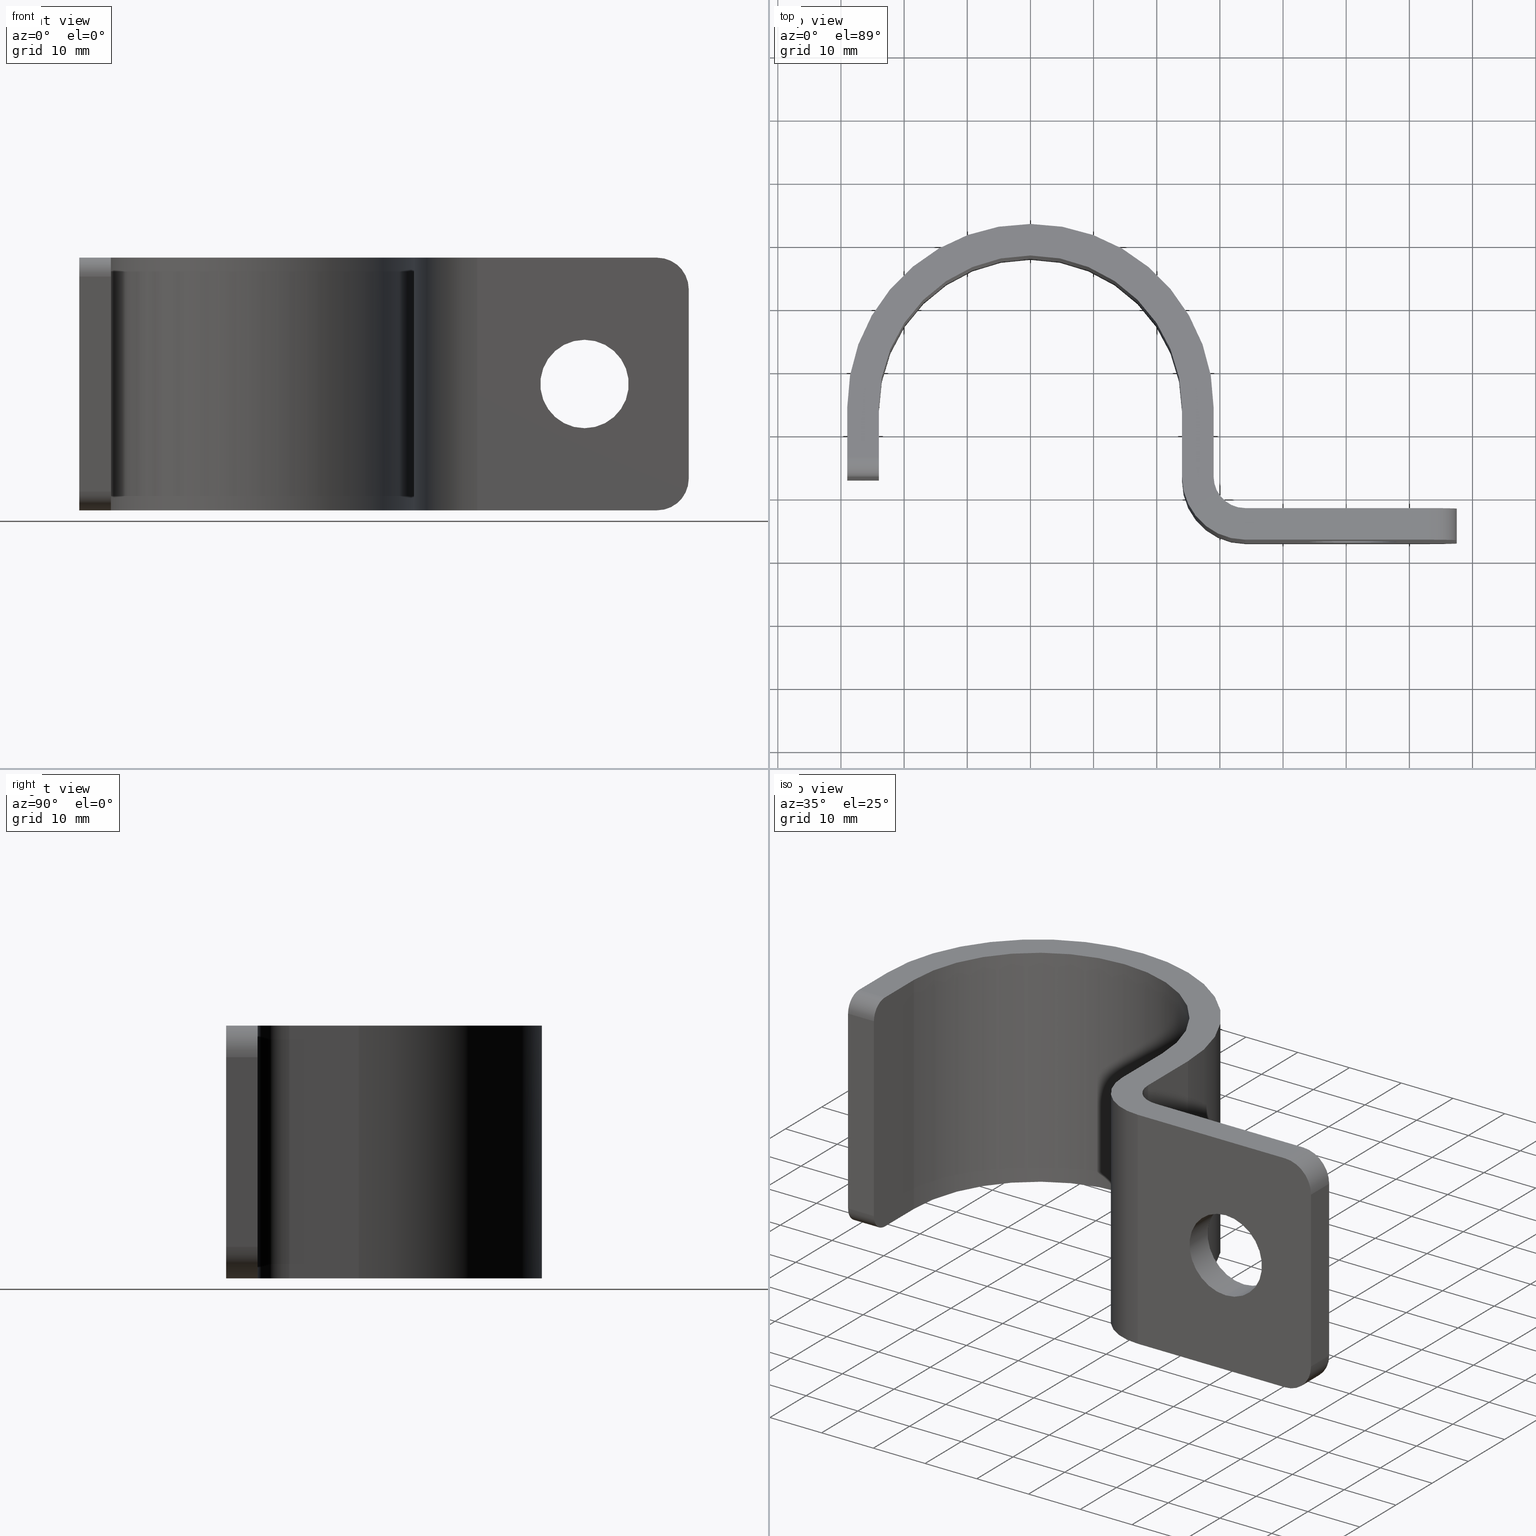
[diagram: canonical four-view strip — front | top / right | iso, engineering-drawing reading convention]
A machine part, canonical four-view strip (front | top / right | iso — engineering-drawing reading convention). The complete STEP part file that produces these views, byte-faithful:
ISO-10303-21;
HEADER;
FILE_DESCRIPTION (( 'STEP AP203' ),
    '1' );
FILE_NAME ('4229-30-45_REV_.step',
    '2026-01-09T02:56:31',
    ( '' ),
    ( '' ),
    'SwSTEP 2.0',
    'SolidWorks 2025',
    '' );
FILE_SCHEMA (( 'CONFIG_CONTROL_DESIGN' ));
ENDSEC;

DATA;
#1 = AXIS2_PLACEMENT_3D ( 'NONE', #465, #273, #718 ) ;
#2 = DIRECTION ( 'NONE',  ( 8.326672684688684900E-16, -1.000000000000000000, -1.665334536937737029E-16 ) ) ;
#3 = VECTOR ( 'NONE', #221, 1000.000000000000000 ) ;
#4 = DIRECTION ( 'NONE',  ( 1.000000000000000000, 1.665334536937733332E-16, -1.110223024625155554E-16 ) ) ;
#5 = CARTESIAN_POINT ( 'NONE',  ( 4.440892098500626162E-13, 24.00000000000046541, -20.00000000000046185 ) ) ;
#6 = DIRECTION ( 'NONE',  ( -1.000000000000000000, -1.196361017915038253E-16, 1.196361017915038253E-16 ) ) ;
#7 = EDGE_CURVE ( 'NONE', #344, #112, #497, .T. ) ;
#8 = ORIENTED_EDGE ( 'NONE', *, *, #627, .F. ) ;
#9 = VERTEX_POINT ( 'NONE', #233 ) ;
#10 = CARTESIAN_POINT ( 'NONE',  ( 62.50000000000000000, 8.000000000000007105, -20.00000000000090594 ) ) ;
#11 = DIRECTION ( 'NONE',  ( 1.000000000000000000, 1.665334536937733332E-16, -1.110223024625155554E-16 ) ) ;
#12 = ORIENTED_EDGE ( 'NONE', *, *, #521, .T. ) ;
#13 = EDGE_CURVE ( 'NONE', #295, #152, #42, .T. ) ;
#14 = ORIENTED_EDGE ( 'NONE', *, *, #494, .T. ) ;
#15 =( NAMED_UNIT ( * ) PLANE_ANGLE_UNIT ( ) SI_UNIT ( $, .RADIAN. ) );
#16 = AXIS2_PLACEMENT_3D ( 'NONE', #194, #257, #651 ) ;
#17 = CARTESIAN_POINT ( 'NONE',  ( 33.99999999999980815, 13.00000000000012257, -20.00000000000090594 ) ) ;
#18 = AXIS2_PLACEMENT_3D ( 'NONE', #517, #193, #249 ) ;
#19 = ORIENTED_EDGE ( 'NONE', *, *, #442, .T. ) ;
#20 = ORIENTED_EDGE ( 'NONE', *, *, #275, .T. ) ;
#21 = CARTESIAN_POINT ( 'NONE',  ( -23.99999999999957723, 16.00000000000023448, 17.00000000000034817 ) ) ;
#22 = FACE_BOUND ( 'NONE', #469, .T. ) ;
#23 = ORIENTED_EDGE ( 'NONE', *, *, #303, .T. ) ;
#24 = ORIENTED_EDGE ( 'NONE', *, *, #137, .F. ) ;
#25 = PERSON_AND_ORGANIZATION ( #355, #347 ) ;
#26 = CYLINDRICAL_SURFACE ( 'NONE', #600, 29.00000000000002487 ) ;
#27 = EDGE_CURVE ( 'NONE', #607, #278, #694, .T. ) ;
#28 = EDGE_LOOP ( 'NONE', ( #822, #731, #204, #298 ) ) ;
#29 = VERTEX_POINT ( 'NONE', #572 ) ;
#30 = LINE ( 'NONE', #309, #396 ) ;
#31 = DIRECTION ( 'NONE',  ( -8.326672684688671588E-17, 1.942890293094023453E-16, 1.000000000000000000 ) ) ;
#32 = AXIS2_PLACEMENT_3D ( 'NONE', #808, #425, #680 ) ;
#33 = SECURITY_CLASSIFICATION ( '', '', #296 ) ;
#34 = VERTEX_POINT ( 'NONE', #757 ) ;
#35 = APPROVAL_DATE_TIME ( #612, #768 ) ;
#36 = CARTESIAN_POINT ( 'NONE',  ( 24.00000000000002132, 13.00000000000034461, 20.00000000000090594 ) ) ;
#37 = CARTESIAN_POINT ( 'NONE',  ( 29.00000000000035882, 16.00000000000001421, 16.99999999999901590 ) ) ;
#38 = ADVANCED_FACE ( 'NONE', ( #682 ), #302, .F. ) ;
#39 = ORIENTED_EDGE ( 'NONE', *, *, #102, .F. ) ;
#40 = COORDINATED_UNIVERSAL_TIME_OFFSET ( 10, 0, .AHEAD. ) ;
#41 = DIRECTION ( 'NONE',  ( 1.000000000000000000, 1.665334536937733332E-16, -1.110223024625155554E-16 ) ) ;
#42 = LINE ( 'NONE', #45, #86 ) ;
#43 = ORIENTED_EDGE ( 'NONE', *, *, #653, .F. ) ;
#44 = FACE_OUTER_BOUND ( 'NONE', #750, .T. ) ;
#45 = CARTESIAN_POINT ( 'NONE',  ( 34.00000000000025580, 2.999999999999891642, 19.99999999999912959 ) ) ;
#46 = AXIS2_PLACEMENT_3D ( 'NONE', #492, #749, #175 ) ;
#47 = AXIS2_PLACEMENT_3D ( 'NONE', #183, #491, #823 ) ;
#48 = ORIENTED_EDGE ( 'NONE', *, *, #27, .T. ) ;
#49 = DIRECTION ( 'NONE',  ( 1.110223024625155185E-16, 1.942890293094023946E-16, 1.000000000000000000 ) ) ;
#50 = FACE_OUTER_BOUND ( 'NONE', #550, .T. ) ;
#51 = DIRECTION ( 'NONE',  ( 1.000000000000000000, 1.076724916123534527E-15, -1.196361017915038253E-16 ) ) ;
#52 = EDGE_CURVE ( 'NONE', #476, #542, #556, .T. ) ;
#53 = DIRECTION ( 'NONE',  ( -1.110223024625155185E-16, -1.942890293094023946E-16, -1.000000000000000000 ) ) ;
#54 = CARTESIAN_POINT ( 'NONE',  ( 29.00000000000035882, 24.00000000000024158, 19.99999999999868550 ) ) ;
#55 = CARTESIAN_POINT ( 'NONE',  ( -29.00000000000035882, 24.00000000000024158, -20.00000000000001776 ) ) ;
#56 = ADVANCED_FACE ( 'NONE', ( #50 ), #819, .T. ) ;
#57 = AXIS2_PLACEMENT_3D ( 'NONE', #55, #53, #585 ) ;
#58 = VECTOR ( 'NONE', #135, 1000.000000000000000 ) ;
#59 = VECTOR ( 'NONE', #63, 1000.000000000000000 ) ;
#60 = LINE ( 'NONE', #580, #457 ) ;
#61 = CARTESIAN_POINT ( 'NONE',  ( 62.50000000000044054, 2.999999999999891642, 19.99999999999957367 ) ) ;
#62 = EDGE_CURVE ( 'NONE', #826, #660, #181, .T. ) ;
#63 = DIRECTION ( 'NONE',  ( 5.551115123125790098E-17, -1.000000000000000000, -1.110223024625158020E-16 ) ) ;
#64 = CARTESIAN_POINT ( 'NONE',  ( 51.00000000000059686, 8.000000000000230926, 7.000000000000885514 ) ) ;
#65 = EDGE_CURVE ( 'NONE', #628, #90, #436, .T. ) ;
#66 = CARTESIAN_POINT ( 'NONE',  ( 51.00000000000059686, 3.000000000000114575, -7.000000000000443201 ) ) ;
#67 = CARTESIAN_POINT ( 'NONE',  ( -28.99999999999947065, 13.00000000000034461, 20.00000000000046185 ) ) ;
#68 = CLOSED_SHELL ( 'NONE', ( #730, #519, #149, #772, #168, #825, #111, #454, #313, #579, #124, #674, #327, #777, #479, #340, #632, #78, #38, #546, #755, #155, #748, #254, #489, #829, #706, #56 ) ) ;
#69 = AXIS2_PLACEMENT_3D ( 'NONE', #373, #687, #560 ) ;
#70 = VERTEX_POINT ( 'NONE', #621 ) ;
#71 = FACE_OUTER_BOUND ( 'NONE', #796, .T. ) ;
#72 = EDGE_CURVE ( 'NONE', #427, #70, #760, .T. ) ;
#73 = AXIS2_PLACEMENT_3D ( 'NONE', #448, #265, #269 ) ;
#74 = LINE ( 'NONE', #350, #210 ) ;
#75 = ORIENTED_EDGE ( 'NONE', *, *, #294, .F. ) ;
#76 = EDGE_LOOP ( 'NONE', ( #351, #281, #335, #480 ) ) ;
#77 = PLANE ( 'NONE',  #804 ) ;
#78 = ADVANCED_FACE ( 'NONE', ( #678 ), #99, .F. ) ;
#79 = ORIENTED_EDGE ( 'NONE', *, *, #333, .T. ) ;
#80 = ORIENTED_EDGE ( 'NONE', *, *, #13, .T. ) ;
#81 = CYLINDRICAL_SURFACE ( 'NONE', #364, 5.000000000000004441 ) ;
#82 = DIRECTION ( 'NONE',  ( -8.326672684688671588E-17, 1.942890293094023453E-16, 1.000000000000000000 ) ) ;
#83 = ORIENTED_EDGE ( 'NONE', *, *, #442, .F. ) ;
#84 = ORIENTED_EDGE ( 'NONE', *, *, #681, .T. ) ;
#85 = FACE_OUTER_BOUND ( 'NONE', #164, .T. ) ;
#86 = VECTOR ( 'NONE', #493, 1000.000000000000000 ) ;
#87 = CIRCLE ( 'NONE', #1, 10.00000000000000888 ) ;
#88 = CARTESIAN_POINT ( 'NONE',  ( 4.440892098500626162E-13, 23.99999999999980105, 19.99999999999957367 ) ) ;
#89 = AXIS2_PLACEMENT_3D ( 'NONE', #703, #132, #842 ) ;
#90 = VERTEX_POINT ( 'NONE', #293 ) ;
#91 = EDGE_CURVE ( 'NONE', #657, #339, #642, .T. ) ;
#92 = EDGE_CURVE ( 'NONE', #675, #795, #514, .T. ) ;
#93 = ORIENTED_EDGE ( 'NONE', *, *, #157, .T. ) ;
#94 = PERSON_AND_ORGANIZATION ( #355, #347 ) ;
#95 = LINE ( 'NONE', #787, #482 ) ;
#96 = ORIENTED_EDGE ( 'NONE', *, *, #294, .T. ) ;
#97 = ORIENTED_EDGE ( 'NONE', *, *, #127, .T. ) ;
#98 = PLANE ( 'NONE',  #46 ) ;
#99 = PLANE ( 'NONE',  #208 ) ;
#100 = ORIENTED_EDGE ( 'NONE', *, *, #785, .T. ) ;
#101 = CALENDAR_DATE ( 2026, 9, 1 ) ;
#102 = EDGE_CURVE ( 'NONE', #488, #34, #813, .T. ) ;
#103 = CARTESIAN_POINT ( 'NONE',  ( -28.99999999999991473, 13.00000000000034461, 16.99999999999901590 ) ) ;
#104 = DIRECTION ( 'NONE',  ( -1.000000000000000000, -1.040834085586083271E-15, 0.000000000000000000 ) ) ;
#105 = VECTOR ( 'NONE', #370, 1000.000000000000000 ) ;
#106 =( GEOMETRIC_REPRESENTATION_CONTEXT ( 3 ) GLOBAL_UNCERTAINTY_ASSIGNED_CONTEXT ( ( #688 ) ) GLOBAL_UNIT_ASSIGNED_CONTEXT ( ( #337, #15, #352 ) ) REPRESENTATION_CONTEXT ( 'NONE', 'WORKASPACE' ) );
#107 = ORIENTED_EDGE ( 'NONE', *, *, #723, .F. ) ;
#108 = DATE_TIME_ROLE ( 'classification_date' ) ;
#109 = PLANE ( 'NONE',  #242 ) ;
#110 = CARTESIAN_POINT ( 'NONE',  ( 24.00000000000046541, 24.00000000000024158, 19.99999999999912959 ) ) ;
#111 = ADVANCED_FACE ( 'NONE', ( #626 ), #524, .T. ) ;
#112 = VERTEX_POINT ( 'NONE', #390 ) ;
#113 = APPROVAL_ROLE ( '' ) ;
#114 = CARTESIAN_POINT ( 'NONE',  ( -24.00000000000002132, 12.99999999999945643, -16.99999999999990408 ) ) ;
#115 = EDGE_LOOP ( 'NONE', ( #413, #803, #288, #758 ) ) ;
#116 = CYLINDRICAL_SURFACE ( 'NONE', #764, 5.000000000000000888 ) ;
#117 = ORIENTED_EDGE ( 'NONE', *, *, #13, .F. ) ;
#118 = CIRCLE ( 'NONE', #788, 29.00000000000002487 ) ;
#119 = LOCAL_TIME ( 13, 56, 30.00000000000000000, #747 ) ;
#120 = EDGE_CURVE ( 'NONE', #367, #675, #710, .T. ) ;
#121 = DIRECTION ( 'NONE',  ( -1.000000000000000000, -1.665334536937733332E-16, 1.110223024625155554E-16 ) ) ;
#122 = FACE_OUTER_BOUND ( 'NONE', #670, .T. ) ;
#123 = DIRECTION ( 'NONE',  ( 0.000000000000000000, 1.858632295689435856E-16, 1.000000000000000000 ) ) ;
#124 = ADVANCED_FACE ( 'NONE', ( #649, #574 ), #459, .F. ) ;
#125 = CARTESIAN_POINT ( 'NONE',  ( 29.00000000000035882, 24.00000000000024158, 19.99999999999868550 ) ) ;
#126 = CARTESIAN_POINT ( 'NONE',  ( -28.99999999999947065, 15.99999999999979217, 20.00000000000001776 ) ) ;
#127 = EDGE_CURVE ( 'NONE', #553, #308, #643, .T. ) ;
#128 = DIRECTION ( 'NONE',  ( 8.326672684688684900E-16, -1.000000000000000000, -1.665334536937737029E-16 ) ) ;
#129 = EDGE_CURVE ( 'NONE', #603, #163, #780, .T. ) ;
#130 = VECTOR ( 'NONE', #729, 1000.000000000000000 ) ;
#131 = AXIS2_PLACEMENT_3D ( 'NONE', #464, #671, #470 ) ;
#132 = DIRECTION ( 'NONE',  ( -1.000000000000000000, -1.665334536937733332E-16, 1.110223024625155554E-16 ) ) ;
#133 = DIRECTION ( 'NONE',  ( -5.551115123125790098E-17, 1.000000000000000000, 1.110223024625158020E-16 ) ) ;
#134 = APPLICATION_CONTEXT ( 'configuration controlled 3d designs of mechanical parts and assemblies' ) ;
#135 = DIRECTION ( 'NONE',  ( 5.551115123125790098E-17, -1.000000000000000000, -1.110223024625158020E-16 ) ) ;
#136 = CARTESIAN_POINT ( 'NONE',  ( 62.50000000000044054, 2.999999999999669598, -15.00000000000101252 ) ) ;
#137 = EDGE_CURVE ( 'NONE', #569, #367, #751, .T. ) ;
#138 = CARTESIAN_POINT ( 'NONE',  ( 51.00000000000059686, 8.000000000000229150, 8.881784197001252323E-13 ) ) ;
#139 = CARTESIAN_POINT ( 'NONE',  ( 34.00000000000025580, 2.999999999999891642, -20.00000000000046185 ) ) ;
#140 = ADVANCED_BREP_SHAPE_REPRESENTATION ( '4229-30-45_REV_', ( #201, #47 ), #106 ) ;
#141 = AXIS2_PLACEMENT_3D ( 'NONE', #222, #11, #534 ) ;
#142 = ORIENTED_EDGE ( 'NONE', *, *, #562, .T. ) ;
#143 = APPROVAL ( #368, 'UNSPECIFIED' ) ;
#144 = CIRCLE ( 'NONE', #320, 29.00000000000002487 ) ;
#145 = DIRECTION ( 'NONE',  ( -1.110223024625155185E-16, -1.942890293094023946E-16, -1.000000000000000000 ) ) ;
#146 = DESIGN_CONTEXT ( 'detailed design', #422, 'design' ) ;
#147 = VERTEX_POINT ( 'NONE', #646 ) ;
#148 = CARTESIAN_POINT ( 'NONE',  ( 67.49999999999944578, 8.000000000000229150, 20.00000000000046185 ) ) ;
#149 = ADVANCED_FACE ( 'NONE', ( #122 ), #445, .T. ) ;
#150 = LINE ( 'NONE', #415, #655 ) ;
#151 = ORIENTED_EDGE ( 'NONE', *, *, #647, .T. ) ;
#152 = VERTEX_POINT ( 'NONE', #392 ) ;
#153 = DIRECTION ( 'NONE',  ( 8.326672684688671588E-17, -1.942890293094023453E-16, -1.000000000000000000 ) ) ;
#154 = DIRECTION ( 'NONE',  ( -1.000000000000000000, -1.054711873393897727E-15, 1.387778780781444443E-16 ) ) ;
#155 = ADVANCED_FACE ( 'NONE', ( #325 ), #583, .T. ) ;
#156 = ORIENTED_EDGE ( 'NONE', *, *, #681, .F. ) ;
#157 = EDGE_CURVE ( 'NONE', #147, #280, #774, .T. ) ;
#158 = ORIENTED_EDGE ( 'NONE', *, *, #229, .T. ) ;
#159 = DIRECTION ( 'NONE',  ( 0.000000000000000000, -7.401486830834370205E-14, 1.000000000000000000 ) ) ;
#160 = AXIS2_PLACEMENT_3D ( 'NONE', #832, #522, #4 ) ;
#161 = LINE ( 'NONE', #590, #537 ) ;
#162 = LOCAL_TIME ( 13, 56, 30.00000000000000000, #40 ) ;
#163 = VERTEX_POINT ( 'NONE', #778 ) ;
#164 = EDGE_LOOP ( 'NONE', ( #463, #810, #378, #606 ) ) ;
#165 = PERSON_AND_ORGANIZATION_ROLE ( 'classification_officer' ) ;
#166 = FACE_OUTER_BOUND ( 'NONE', #691, .T. ) ;
#167 = EDGE_LOOP ( 'NONE', ( #20, #117, #595, #271 ) ) ;
#168 = ADVANCED_FACE ( 'NONE', ( #639 ), #451, .T. ) ;
#169 = EDGE_LOOP ( 'NONE', ( #142, #244, #284, #228 ) ) ;
#170 = CARTESIAN_POINT ( 'NONE',  ( 62.50000000000000000, 7.999999999999785061, 14.99999999999968026 ) ) ;
#171 = DIRECTION ( 'NONE',  ( 0.000000000000000000, 1.858632295689435856E-16, 1.000000000000000000 ) ) ;
#172 = ORIENTED_EDGE ( 'NONE', *, *, #310, .T. ) ;
#173 = COORDINATED_UNIVERSAL_TIME_OFFSET ( 10, 0, .AHEAD. ) ;
#174 = VECTOR ( 'NONE', #508, 1000.000000000000000 ) ;
#175 = DIRECTION ( 'NONE',  ( 1.000000000000000000, 1.665334536937733332E-16, -1.110223024625155554E-16 ) ) ;
#176 = AXIS2_PLACEMENT_3D ( 'NONE', #773, #770, #385 ) ;
#177 = DIRECTION ( 'NONE',  ( 1.000000000000000000, 3.330669073875468142E-16, -1.110223024625156047E-16 ) ) ;
#178 = AXIS2_PLACEMENT_3D ( 'NONE', #138, #205, #414 ) ;
#179 = ORIENTED_EDGE ( 'NONE', *, *, #627, .T. ) ;
#180 = FACE_OUTER_BOUND ( 'NONE', #331, .T. ) ;
#181 = LINE ( 'NONE', #762, #717 ) ;
#182 = ORIENTED_EDGE ( 'NONE', *, *, #91, .F. ) ;
#183 = CARTESIAN_POINT ( 'NONE',  ( 0.000000000000000000, 0.000000000000000000, 0.000000000000000000 ) ) ;
#184 = DIRECTION ( 'NONE',  ( 8.326672684688671588E-17, -1.942890293094023453E-16, -1.000000000000000000 ) ) ;
#185 = CARTESIAN_POINT ( 'NONE',  ( 24.00000000000046541, 8.000000000000229150, 19.99999999999957367 ) ) ;
#186 = CARTESIAN_POINT ( 'NONE',  ( 24.00000000000046541, 7.999999999999785061, -20.00000000000179412 ) ) ;
#187 = CARTESIAN_POINT ( 'NONE',  ( 24.00000000000002132, 13.00000000000034461, 20.00000000000090594 ) ) ;
#188 = AXIS2_PLACEMENT_3D ( 'NONE', #37, #745, #432 ) ;
#189 = VECTOR ( 'NONE', #41, 1000.000000000000000 ) ;
#190 = VECTOR ( 'NONE', #316, 1000.000000000000000 ) ;
#191 = CARTESIAN_POINT ( 'NONE',  ( 51.00000000000059686, 3.000000000000113687, -4.440892098500626162E-13 ) ) ;
#192 = DIRECTION ( 'NONE',  ( -1.000000000000000000, -1.040834085586083271E-15, 0.000000000000000000 ) ) ;
#193 = DIRECTION ( 'NONE',  ( 1.000000000000000000, 1.665334536937733825E-16, 8.326672684688667890E-17 ) ) ;
#194 = CARTESIAN_POINT ( 'NONE',  ( 34.00000000000025580, 13.00000000000034461, 19.99999999999868550 ) ) ;
#195 = PLANE ( 'NONE',  #18 ) ;
#196 = DIRECTION ( 'NONE',  ( -1.000000000000000000, 6.106226635438355056E-16, 1.387778780781444443E-16 ) ) ;
#197 = VECTOR ( 'NONE', #759, 1000.000000000000000 ) ;
#198 = AXIS2_PLACEMENT_3D ( 'NONE', #399, #589, #202 ) ;
#199 = DIRECTION ( 'NONE',  ( 0.000000000000000000, 1.000000000000000000, 0.000000000000000000 ) ) ;
#200 = LINE ( 'NONE', #67, #567 ) ;
#201 = MANIFOLD_SOLID_BREP ( 'Fillet2', #68 ) ;
#202 = DIRECTION ( 'NONE',  ( 0.000000000000000000, 0.000000000000000000, 1.000000000000000000 ) ) ;
#203 = DIRECTION ( 'NONE',  ( 1.221245327087673772E-15, -1.000000000000000000, -1.110223024625158020E-16 ) ) ;
#204 = ORIENTED_EDGE ( 'NONE', *, *, #689, .F. ) ;
#205 = DIRECTION ( 'NONE',  ( -5.551115123125790098E-17, 1.000000000000000000, 1.110223024625158020E-16 ) ) ;
#206 = CARTESIAN_POINT ( 'NONE',  ( -24.00000000000002132, 2.999999999999891642, 20.00000000000001776 ) ) ;
#207 = ORIENTED_EDGE ( 'NONE', *, *, #814, .T. ) ;
#208 = AXIS2_PLACEMENT_3D ( 'NONE', #359, #615, #31 ) ;
#209 = EDGE_CURVE ( 'NONE', #339, #308, #707, .T. ) ;
#210 = VECTOR ( 'NONE', #395, 1000.000000000000000 ) ;
#211 = ORIENTED_EDGE ( 'NONE', *, *, #209, .T. ) ;
#212 = CARTESIAN_POINT ( 'NONE',  ( 67.49999999999988631, 3.000000000000113687, 19.99999999999912959 ) ) ;
#213 = FACE_OUTER_BOUND ( 'NONE', #742, .T. ) ;
#214 = VERTEX_POINT ( 'NONE', #61 ) ;
#215 = ORIENTED_EDGE ( 'NONE', *, *, #275, .F. ) ;
#216 = CARTESIAN_POINT ( 'NONE',  ( 29.00000000000035882, 24.00000000000046541, -20.00000000000090594 ) ) ;
#217 = EDGE_CURVE ( 'NONE', #9, #542, #712, .T. ) ;
#218 = FACE_OUTER_BOUND ( 'NONE', #220, .T. ) ;
#219 = EDGE_CURVE ( 'NONE', #593, #476, #200, .T. ) ;
#220 = EDGE_LOOP ( 'NONE', ( #679, #215, #83, #93 ) ) ;
#221 = DIRECTION ( 'NONE',  ( 8.326672684688671588E-17, -1.942890293094023453E-16, -1.000000000000000000 ) ) ;
#222 = CARTESIAN_POINT ( 'NONE',  ( -24.00000000000002132, 16.00000000000001421, -16.99999999999990408 ) ) ;
#223 = ORIENTED_EDGE ( 'NONE', *, *, #92, .T. ) ;
#224 = ORIENTED_EDGE ( 'NONE', *, *, #481, .F. ) ;
#225 = VECTOR ( 'NONE', #383, 1000.000000000000000 ) ;
#226 = CARTESIAN_POINT ( 'NONE',  ( -29.00000000000035882, 24.00000000000024158, -20.00000000000001776 ) ) ;
#227 = CIRCLE ( 'NONE', #431, 7.000000000000000888 ) ;
#228 = ORIENTED_EDGE ( 'NONE', *, *, #379, .T. ) ;
#229 = EDGE_CURVE ( 'NONE', #308, #553, #318, .T. ) ;
#230 = ORIENTED_EDGE ( 'NONE', *, *, #219, .F. ) ;
#231 = PERSON_AND_ORGANIZATION ( #355, #347 ) ;
#232 = CARTESIAN_POINT ( 'NONE',  ( 34.00000000000025580, 8.000000000000229150, 19.99999999999957367 ) ) ;
#233 = CARTESIAN_POINT ( 'NONE',  ( -23.99999999999957723, 12.99999999999945643, 17.00000000000123634 ) ) ;
#234 = ORIENTED_EDGE ( 'NONE', *, *, #217, .F. ) ;
#235 = PERSON_AND_ORGANIZATION ( #355, #347 ) ;
#236 = LINE ( 'NONE', #226, #719 ) ;
#237 = EDGE_LOOP ( 'NONE', ( #433, #506, #532, #800 ) ) ;
#238 = EDGE_LOOP ( 'NONE', ( #570, #39, #815, #398 ) ) ;
#239 = MECHANICAL_CONTEXT ( 'NONE', #134, 'mechanical' ) ;
#240 = EDGE_CURVE ( 'NONE', #685, #304, #262, .T. ) ;
#241 = CARTESIAN_POINT ( 'NONE',  ( 34.00000000000025580, 8.000000000000229150, 19.99999999999957367 ) ) ;
#242 = AXIS2_PLACEMENT_3D ( 'NONE', #241, #49, #363 ) ;
#243 = ORIENTED_EDGE ( 'NONE', *, *, #345, .T. ) ;
#244 = ORIENTED_EDGE ( 'NONE', *, *, #323, .T. ) ;
#245 = PERSON_AND_ORGANIZATION ( #355, #347 ) ;
#246 = CARTESIAN_POINT ( 'NONE',  ( 62.50000000000000000, 7.999999999999785061, 14.99999999999968026 ) ) ;
#247 = CARTESIAN_POINT ( 'NONE',  ( -24.00000000000002132, 12.99999999999945643, -16.99999999999990408 ) ) ;
#248 = ORIENTED_EDGE ( 'NONE', *, *, #65, .T. ) ;
#249 = DIRECTION ( 'NONE',  ( 8.326672684688671588E-17, -1.942890293094023453E-16, -1.000000000000000000 ) ) ;
#250 = DIRECTION ( 'NONE',  ( 8.326672684688671588E-17, -1.942890293094023453E-16, -1.000000000000000000 ) ) ;
#251 = FACE_OUTER_BOUND ( 'NONE', #727, .T. ) ;
#252 = CARTESIAN_POINT ( 'NONE',  ( 29.00000000000035882, 24.00000000000024158, 19.99999999999868550 ) ) ;
#253 = VECTOR ( 'NONE', #420, 1000.000000000000000 ) ;
#254 = ADVANCED_FACE ( 'NONE', ( #317 ), #577, .T. ) ;
#255 = AXIS2_PLACEMENT_3D ( 'NONE', #389, #312, #648 ) ;
#256 = DIRECTION ( 'NONE',  ( -1.000000000000000000, -1.665334536937733825E-16, -8.326672684688667890E-17 ) ) ;
#257 = DIRECTION ( 'NONE',  ( 1.110223024625155185E-16, 1.942890293094023946E-16, 1.000000000000000000 ) ) ;
#258 = CC_DESIGN_PERSON_AND_ORGANIZATION_ASSIGNMENT ( #245, #743, ( #397 ) ) ;
#259 = FACE_OUTER_BOUND ( 'NONE', #490, .T. ) ;
#260 = CARTESIAN_POINT ( 'NONE',  ( 67.50000000000034106, 7.999999999999563016, -15.00000000000056843 ) ) ;
#261 = FACE_OUTER_BOUND ( 'NONE', #28, .T. ) ;
#262 = LINE ( 'NONE', #125, #225 ) ;
#263 = VECTOR ( 'NONE', #369, 1000.000000000000000 ) ;
#264 = AXIS2_PLACEMENT_3D ( 'NONE', #332, #402, #779 ) ;
#265 = DIRECTION ( 'NONE',  ( -5.551115123125790098E-17, 1.000000000000000000, 1.110223024625158020E-16 ) ) ;
#266 = DIRECTION ( 'NONE',  ( -5.551115123125790098E-17, 1.000000000000000000, 1.110223024625158020E-16 ) ) ;
#267 = EDGE_CURVE ( 'NONE', #278, #603, #598, .T. ) ;
#268 = ORIENTED_EDGE ( 'NONE', *, *, #417, .T. ) ;
#269 = DIRECTION ( 'NONE',  ( 0.000000000000000000, 2.478176394252582620E-16, 1.000000000000000000 ) ) ;
#270 = DIRECTION ( 'NONE',  ( 1.000000000000000000, 0.000000000000000000, 0.000000000000000000 ) ) ;
#271 = ORIENTED_EDGE ( 'NONE', *, *, #7, .T. ) ;
#272 = ORIENTED_EDGE ( 'NONE', *, *, #387, .T. ) ;
#273 = DIRECTION ( 'NONE',  ( -8.326672684688671588E-17, 1.942890293094023453E-16, 1.000000000000000000 ) ) ;
#274 = ORIENTED_EDGE ( 'NONE', *, *, #613, .T. ) ;
#275 = EDGE_CURVE ( 'NONE', #112, #152, #444, .T. ) ;
#276 = VECTOR ( 'NONE', #196, 1000.000000000000000 ) ;
#277 = AXIS2_PLACEMENT_3D ( 'NONE', #775, #458, #199 ) ;
#278 = VERTEX_POINT ( 'NONE', #734 ) ;
#279 = CARTESIAN_POINT ( 'NONE',  ( 34.00000000000025580, 2.999999999999891642, 19.99999999999912959 ) ) ;
#280 = VERTEX_POINT ( 'NONE', #353 ) ;
#281 = ORIENTED_EDGE ( 'NONE', *, *, #323, .F. ) ;
#282 = LINE ( 'NONE', #148, #835 ) ;
#283 = DIRECTION ( 'NONE',  ( 5.551115123125790098E-17, -1.000000000000000000, -1.110223024625158020E-16 ) ) ;
#284 = ORIENTED_EDGE ( 'NONE', *, *, #72, .F. ) ;
#285 = ORIENTED_EDGE ( 'NONE', *, *, #833, .T. ) ;
#286 = APPROVAL_ROLE ( '' ) ;
#287 = LINE ( 'NONE', #549, #411 ) ;
#288 = ORIENTED_EDGE ( 'NONE', *, *, #240, .T. ) ;
#289 = ORIENTED_EDGE ( 'NONE', *, *, #120, .F. ) ;
#290 = VECTOR ( 'NONE', #767, 1000.000000000000000 ) ;
#291 = PLANE ( 'NONE',  #32 ) ;
#292 = LOCAL_TIME ( 13, 56, 30.00000000000000000, #548 ) ;
#293 = CARTESIAN_POINT ( 'NONE',  ( -29.00000000000035882, 24.00000000000024158, -20.00000000000001776 ) ) ;
#294 = EDGE_CURVE ( 'NONE', #657, #553, #95, .T. ) ;
#295 = VERTEX_POINT ( 'NONE', #279 ) ;
#296 = SECURITY_CLASSIFICATION_LEVEL ( 'unclassified' ) ;
#297 = CARTESIAN_POINT ( 'NONE',  ( -28.99999999999947065, 15.99999999999957012, -19.99999999999868550 ) ) ;
#298 = ORIENTED_EDGE ( 'NONE', *, *, #462, .F. ) ;
#299 = EDGE_CURVE ( 'NONE', #163, #685, #118, .T. ) ;
#300 = ORIENTED_EDGE ( 'NONE', *, *, #209, .F. ) ;
#301 = FACE_OUTER_BOUND ( 'NONE', #76, .T. ) ;
#302 = CYLINDRICAL_SURFACE ( 'NONE', #498, 24.00000000000002132 ) ;
#303 = EDGE_CURVE ( 'NONE', #163, #90, #161, .T. ) ;
#304 = VERTEX_POINT ( 'NONE', #715 ) ;
#305 = APPROVAL_ROLE ( '' ) ;
#306 = DIRECTION ( 'NONE',  ( -8.326672684688684900E-16, 1.000000000000000000, 1.665334536937737029E-16 ) ) ;
#307 = CARTESIAN_POINT ( 'NONE',  ( -28.99999999999947065, 2.999999999999447553, -19.99999999999912959 ) ) ;
#308 = VERTEX_POINT ( 'NONE', #794 ) ;
#309 = CARTESIAN_POINT ( 'NONE',  ( 24.00000000000002132, 3.000000000000335731, 19.99999999999957367 ) ) ;
#310 = EDGE_CURVE ( 'NONE', #344, #295, #87, .T. ) ;
#311 = EDGE_LOOP ( 'NONE', ( #790, #623, #784, #19 ) ) ;
#312 = DIRECTION ( 'NONE',  ( 8.326672684688671588E-17, -1.942890293094023453E-16, -1.000000000000000000 ) ) ;
#313 = ADVANCED_FACE ( 'NONE', ( #218 ), #474, .T. ) ;
#314 = CARTESIAN_POINT ( 'NONE',  ( -23.99999999999957723, 12.99999999999990052, 19.99999999999957367 ) ) ;
#315 = PRODUCT_DEFINITION_SHAPE ( 'NONE', 'NONE',  #805 ) ;
#316 = DIRECTION ( 'NONE',  ( 1.000000000000000000, 1.054711873393897727E-15, -1.387778780781444443E-16 ) ) ;
#317 = FACE_OUTER_BOUND ( 'NONE', #375, .T. ) ;
#318 = CIRCLE ( 'NONE', #319, 6.999999999999993783 ) ;
#319 = AXIS2_PLACEMENT_3D ( 'NONE', #449, #843, #704 ) ;
#320 = AXIS2_PLACEMENT_3D ( 'NONE', #761, #638, #51 ) ;
#321 = CARTESIAN_POINT ( 'NONE',  ( -28.99999999999991473, 13.00000000000034461, 16.99999999999901590 ) ) ;
#322 = DIRECTION ( 'NONE',  ( 8.326672684688671588E-17, -1.942890293094023453E-16, -1.000000000000000000 ) ) ;
#323 = EDGE_CURVE ( 'NONE', #214, #70, #338, .T. ) ;
#324 = DIRECTION ( 'NONE',  ( 8.326672684688671588E-17, -1.942890293094023453E-16, -1.000000000000000000 ) ) ;
#325 = FACE_OUTER_BOUND ( 'NONE', #169, .T. ) ;
#326 = PLANE ( 'NONE',  #776 ) ;
#327 = ADVANCED_FACE ( 'NONE', ( #22, #213 ), #77, .T. ) ;
#328 = DIRECTION ( 'NONE',  ( 1.000000000000000000, 0.000000000000000000, 0.000000000000000000 ) ) ;
#329 = AXIS2_PLACEMENT_3D ( 'NONE', #136, #128, #192 ) ;
#330 = VECTOR ( 'NONE', #452, 1000.000000000000000 ) ;
#331 = EDGE_LOOP ( 'NONE', ( #735, #466, #509, #726 ) ) ;
#332 = CARTESIAN_POINT ( 'NONE',  ( -23.99999999999957723, 12.99999999999967848, -20.00000000000001776 ) ) ;
#333 = EDGE_CURVE ( 'NONE', #542, #746, #698, .T. ) ;
#334 = DIRECTION ( 'NONE',  ( -5.551115123125790098E-17, 1.000000000000000000, 1.110223024625158020E-16 ) ) ;
#335 = ORIENTED_EDGE ( 'NONE', *, *, #763, .F. ) ;
#336 = ORIENTED_EDGE ( 'NONE', *, *, #723, .T. ) ;
#337 =( LENGTH_UNIT ( ) NAMED_UNIT ( * ) SI_UNIT ( .MILLI., .METRE. ) );
#338 = LINE ( 'NONE', #400, #130 ) ;
#339 = VERTEX_POINT ( 'NONE', #662 ) ;
#340 = ADVANCED_FACE ( 'NONE', ( #471 ), #26, .T. ) ;
#341 = ORIENTED_EDGE ( 'NONE', *, *, #725, .F. ) ;
#342 = CARTESIAN_POINT ( 'NONE',  ( -33.99999999999936051, 8.000000000000007105, -19.99999999999912959 ) ) ;
#343 = DIRECTION ( 'NONE',  ( 8.326672684688671588E-17, -1.942890293094023453E-16, -1.000000000000000000 ) ) ;
#344 = VERTEX_POINT ( 'NONE', #654 ) ;
#345 = EDGE_CURVE ( 'NONE', #685, #799, #74, .T. ) ;
#346 = VECTOR ( 'NONE', #358, 1000.000000000000000 ) ;
#347 = ORGANIZATION ( 'UNSPECIFIED', 'UNSPECIFIED', '' ) ;
#348 = EDGE_LOOP ( 'NONE', ( #695, #79, #336, #43, #354, #207 ) ) ;
#349 = DIRECTION ( 'NONE',  ( 8.326672684688671588E-17, -1.942890293094023453E-16, -1.000000000000000000 ) ) ;
#350 = CARTESIAN_POINT ( 'NONE',  ( 29.00000000000035882, 24.00000000000024158, 19.99999999999868550 ) ) ;
#351 = ORIENTED_EDGE ( 'NONE', *, *, #557, .F. ) ;
#352 =( NAMED_UNIT ( * ) SI_UNIT ( $, .STERADIAN. ) SOLID_ANGLE_UNIT ( ) );
#353 = CARTESIAN_POINT ( 'NONE',  ( 34.00000000000025580, 8.000000000000451195, -20.00000000000090594 ) ) ;
#354 = ORIENTED_EDGE ( 'NONE', *, *, #267, .F. ) ;
#355 = PERSON ( 'UNSPECIFIED', 'UNSPECIFIED', 'UNSPECIFIED', ('UNSPECIFIED'), ('UNSPECIFIED'), ('UNSPECIFIED') ) ;
#356 = ORIENTED_EDGE ( 'NONE', *, *, #91, .T. ) ;
#357 = SHAPE_DEFINITION_REPRESENTATION ( #315, #140 ) ;
#358 = DIRECTION ( 'NONE',  ( -1.000000000000000000, -3.330669073875468142E-16, 1.110223024625156047E-16 ) ) ;
#359 = CARTESIAN_POINT ( 'NONE',  ( -24.00000000000002132, 2.999999999999891642, 20.00000000000001776 ) ) ;
#360 = ORIENTED_EDGE ( 'NONE', *, *, #129, .T. ) ;
#361 = CALENDAR_DATE ( 2026, 9, 1 ) ;
#362 = AXIS2_PLACEMENT_3D ( 'NONE', #487, #636, #184 ) ;
#363 = DIRECTION ( 'NONE',  ( 1.000000000000000000, 1.665334536937733332E-16, -1.110223024625155554E-16 ) ) ;
#364 = AXIS2_PLACEMENT_3D ( 'NONE', #733, #349, #604 ) ;
#365 = EDGE_CURVE ( 'NONE', #799, #147, #150, .T. ) ;
#366 = DIRECTION ( 'NONE',  ( 1.000000000000000000, 3.330669073875468142E-16, -1.110223024625156047E-16 ) ) ;
#367 = VERTEX_POINT ( 'NONE', #545 ) ;
#368 = APPROVAL_STATUS ( 'not_yet_approved' ) ;
#369 = DIRECTION ( 'NONE',  ( 8.326672684688671588E-17, -1.942890293094023453E-16, -1.000000000000000000 ) ) ;
#370 = DIRECTION ( 'NONE',  ( 8.326672684688671588E-17, -1.942890293094023453E-16, -1.000000000000000000 ) ) ;
#371 = EDGE_CURVE ( 'NONE', #304, #427, #736, .T. ) ;
#372 = ORIENTED_EDGE ( 'NONE', *, *, #833, .F. ) ;
#373 = CARTESIAN_POINT ( 'NONE',  ( 29.00000000000035882, 24.00000000000024158, 19.99999999999868550 ) ) ;
#374 = ORIENTED_EDGE ( 'NONE', *, *, #613, .F. ) ;
#375 = EDGE_LOOP ( 'NONE', ( #499, #289, #24, #565 ) ) ;
#376 = PLANE ( 'NONE',  #362 ) ;
#377 = VECTOR ( 'NONE', #783, 1000.000000000000000 ) ;
#378 = ORIENTED_EDGE ( 'NONE', *, *, #371, .T. ) ;
#379 = EDGE_CURVE ( 'NONE', #427, #295, #287, .T. ) ;
#380 = DIRECTION ( 'NONE',  ( -8.326672684688671588E-17, 1.942890293094023453E-16, 1.000000000000000000 ) ) ;
#381 = DIRECTION ( 'NONE',  ( -8.326672684688671588E-17, 1.942890293094023453E-16, 1.000000000000000000 ) ) ;
#382 = CARTESIAN_POINT ( 'NONE',  ( -23.99999999999957723, 23.99999999999980105, 19.99999999999957367 ) ) ;
#383 = DIRECTION ( 'NONE',  ( 5.551115123125790098E-17, -1.000000000000000000, -1.110223024625158020E-16 ) ) ;
#384 = DIRECTION ( 'NONE',  ( -1.000000000000000000, -3.330669073875468142E-16, 1.110223024625156047E-16 ) ) ;
#385 = DIRECTION ( 'NONE',  ( -1.000000000000000000, -1.054711873393897727E-15, 1.387778780781444443E-16 ) ) ;
#386 = AXIS2_PLACEMENT_3D ( 'NONE', #252, #840, #455 ) ;
#387 = EDGE_CURVE ( 'NONE', #152, #280, #461, .T. ) ;
#388 = VECTOR ( 'NONE', #709, 1000.000000000000000 ) ;
#389 = CARTESIAN_POINT ( 'NONE',  ( 4.440892098500626162E-13, 23.99999999999980105, 19.99999999999957367 ) ) ;
#390 = CARTESIAN_POINT ( 'NONE',  ( 23.99999999999957723, 13.00000000000034461, -20.00000000000135003 ) ) ;
#391 = LINE ( 'NONE', #571, #720 ) ;
#392 = CARTESIAN_POINT ( 'NONE',  ( 34.00000000000025580, 2.999999999999891642, -20.00000000000046185 ) ) ;
#393 = EDGE_LOOP ( 'NONE', ( #224, #172, #423, #539 ) ) ;
#394 = PLANE ( 'NONE',  #131 ) ;
#395 = DIRECTION ( 'NONE',  ( 8.326672684688671588E-17, -1.942890293094023453E-16, -1.000000000000000000 ) ) ;
#396 = VECTOR ( 'NONE', #802, 1000.000000000000000 ) ;
#397 = PRODUCT_DEFINITION_FORMATION_WITH_SPECIFIED_SOURCE ( 'ANY', '', #486, .NOT_KNOWN. ) ;
#398 = ORIENTED_EDGE ( 'NONE', *, *, #653, .T. ) ;
#399 = CARTESIAN_POINT ( 'NONE',  ( -28.99999999999947065, 16.00000000000001421, 16.99999999999990408 ) ) ;
#400 = CARTESIAN_POINT ( 'NONE',  ( 62.50000000000133582, 13.00000000000012257, 19.99999999999912959 ) ) ;
#401 = EDGE_LOOP ( 'NONE', ( #14, #409, #484, #732, #663, #80 ) ) ;
#402 = DIRECTION ( 'NONE',  ( -3.330669073875468142E-16, 1.000000000000000000, 8.326672684688687612E-17 ) ) ;
#403 = DIRECTION ( 'NONE',  ( -1.000000000000000000, -1.665334536937733332E-16, 1.110223024625155554E-16 ) ) ;
#404 = EDGE_CURVE ( 'NONE', #427, #280, #440, .T. ) ;
#405 = ORIENTED_EDGE ( 'NONE', *, *, #129, .F. ) ;
#406 = ORIENTED_EDGE ( 'NONE', *, *, #27, .F. ) ;
#407 = FACE_OUTER_BOUND ( 'NONE', #237, .T. ) ;
#408 = CARTESIAN_POINT ( 'NONE',  ( 24.00000000000046541, 8.000000000000229150, 19.99999999999957367 ) ) ;
#409 = ORIENTED_EDGE ( 'NONE', *, *, #137, .T. ) ;
#410 = VECTOR ( 'NONE', #366, 1000.000000000000000 ) ;
#411 = VECTOR ( 'NONE', #203, 1000.000000000000000 ) ;
#412 = AXIS2_PLACEMENT_3D ( 'NONE', #5, #782, #716 ) ;
#413 = ORIENTED_EDGE ( 'NONE', *, *, #365, .F. ) ;
#414 = DIRECTION ( 'NONE',  ( 0.000000000000000000, 2.478176394252582620E-16, 1.000000000000000000 ) ) ;
#415 = CARTESIAN_POINT ( 'NONE',  ( 29.00000000000035882, 24.00000000000046541, -20.00000000000090594 ) ) ;
#416 = ORIENTED_EDGE ( 'NONE', *, *, #102, .T. ) ;
#417 = EDGE_CURVE ( 'NONE', #90, #29, #236, .T. ) ;
#418 = ORIENTED_EDGE ( 'NONE', *, *, #596, .F. ) ;
#419 = DATE_AND_TIME ( #101, #821 ) ;
#420 = DIRECTION ( 'NONE',  ( 5.551115123125790098E-17, -1.000000000000000000, -1.110223024625158020E-16 ) ) ;
#421 = ORIENTED_EDGE ( 'NONE', *, *, #689, .T. ) ;
#422 = APPLICATION_CONTEXT ( 'configuration controlled 3d designs of mechanical parts and assemblies' ) ;
#423 = ORIENTED_EDGE ( 'NONE', *, *, #379, .F. ) ;
#424 = APPLICATION_PROTOCOL_DEFINITION ( 'international standard', 'config_control_design', 1994, #134 ) ;
#425 = DIRECTION ( 'NONE',  ( -1.110223024625155185E-16, -1.942890293094023946E-16, -1.000000000000000000 ) ) ;
#426 = CARTESIAN_POINT ( 'NONE',  ( 62.50000000000044054, 8.000000000000229150, -15.00000000000145661 ) ) ;
#427 = VERTEX_POINT ( 'NONE', #232 ) ;
#428 = AXIS2_PLACEMENT_3D ( 'NONE', #641, #381, #328 ) ;
#429 = CIRCLE ( 'NONE', #198, 3.000000000000002665 ) ;
#430 = DIRECTION ( 'NONE',  ( 1.000000000000000000, -6.106226635438355056E-16, -1.387778780781444443E-16 ) ) ;
#431 = AXIS2_PLACEMENT_3D ( 'NONE', #191, #450, #123 ) ;
#432 = DIRECTION ( 'NONE',  ( 0.000000000000000000, -1.000000000000000000, 0.000000000000000000 ) ) ;
#433 = ORIENTED_EDGE ( 'NONE', *, *, #838, .F. ) ;
#434 = PERSON_AND_ORGANIZATION_ROLE ( 'creator' ) ;
#435 = CARTESIAN_POINT ( 'NONE',  ( 24.00000000000046541, 2.999999999999669598, -20.00000000000046185 ) ) ;
#436 = LINE ( 'NONE', #307, #174 ) ;
#437 = PRODUCT_RELATED_PRODUCT_CATEGORY ( 'detail', '', ( #486 ) ) ;
#438 = ORIENTED_EDGE ( 'NONE', *, *, #229, .F. ) ;
#439 = APPLICATION_PROTOCOL_DEFINITION ( 'international standard', 'config_control_design', 1994, #422 ) ;
#440 = LINE ( 'NONE', #744, #263 ) ;
#441 = DIRECTION ( 'NONE',  ( 1.000000000000000000, 1.054711873393897727E-15, -1.387778780781444443E-16 ) ) ;
#442 = EDGE_CURVE ( 'NONE', #147, #112, #630, .T. ) ;
#443 = CARTESIAN_POINT ( 'NONE',  ( 67.50000000000034106, 7.999999999999563016, -15.00000000000056843 ) ) ;
#444 = CIRCLE ( 'NONE', #834, 10.00000000000000888 ) ;
#445 = PLANE ( 'NONE',  #386 ) ;
#446 = CC_DESIGN_APPROVAL ( #768, ( #397 ) ) ;
#447 = CC_DESIGN_PERSON_AND_ORGANIZATION_ASSIGNMENT ( #619, #608, ( #397 ) ) ;
#448 = CARTESIAN_POINT ( 'NONE',  ( 51.00000000000059686, 8.000000000000229150, 8.881784197001252323E-13 ) ) ;
#449 = CARTESIAN_POINT ( 'NONE',  ( 51.00000000000059686, 8.000000000000229150, 8.881784197001252323E-13 ) ) ;
#450 = DIRECTION ( 'NONE',  ( -5.551115123125790098E-17, 1.000000000000000000, 1.110223024625158020E-16 ) ) ;
#451 = PLANE ( 'NONE',  #57 ) ;
#452 = DIRECTION ( 'NONE',  ( 8.326672684688671588E-17, -1.942890293094023453E-16, -1.000000000000000000 ) ) ;
#453 = VECTOR ( 'NONE', #441, 1000.000000000000000 ) ;
#454 = ADVANCED_FACE ( 'NONE', ( #180 ), #109, .T. ) ;
#455 = DIRECTION ( 'NONE',  ( 1.000000000000000000, 1.665334536937733332E-16, -1.110223024625155554E-16 ) ) ;
#456 = VECTOR ( 'NONE', #266, 1000.000000000000000 ) ;
#457 = VECTOR ( 'NONE', #324, 1000.000000000000000 ) ;
#458 = DIRECTION ( 'NONE',  ( 1.000000000000000000, 3.330669073875468142E-16, -1.110223024625156047E-16 ) ) ;
#459 = PLANE ( 'NONE',  #176 ) ;
#460 = LINE ( 'NONE', #597, #483 ) ;
#461 = LINE ( 'NONE', #530, #377 ) ;
#462 = EDGE_CURVE ( 'NONE', #746, #628, #625, .T. ) ;
#463 = ORIENTED_EDGE ( 'NONE', *, *, #157, .F. ) ;
#464 = CARTESIAN_POINT ( 'NONE',  ( 23.99999999999957723, 24.00000000000024158, -20.00000000000135003 ) ) ;
#465 = CARTESIAN_POINT ( 'NONE',  ( 34.00000000000025580, 13.00000000000034461, 19.99999999999868550 ) ) ;
#466 = ORIENTED_EDGE ( 'NONE', *, *, #481, .T. ) ;
#467 = AXIS2_PLACEMENT_3D ( 'NONE', #561, #809, #171 ) ;
#468 = CC_DESIGN_APPROVAL ( #622, ( #805 ) ) ;
#469 = EDGE_LOOP ( 'NONE', ( #438, #664 ) ) ;
#470 = DIRECTION ( 'NONE',  ( -1.000000000000000000, -1.665334536937733332E-16, 1.110223024625155554E-16 ) ) ;
#471 = FACE_OUTER_BOUND ( 'NONE', #472, .T. ) ;
#472 = EDGE_LOOP ( 'NONE', ( #341, #563, #610, #243 ) ) ;
#473 = CYLINDRICAL_SURFACE ( 'NONE', #699, 10.00000000000000888 ) ;
#474 = PLANE ( 'NONE',  #586 ) ;
#475 = ORIENTED_EDGE ( 'NONE', *, *, #52, .T. ) ;
#476 = VERTEX_POINT ( 'NONE', #503 ) ;
#477 = CARTESIAN_POINT ( 'NONE',  ( 62.50000000000000000, 2.999999999999891642, 14.99999999999968026 ) ) ;
#478 = CARTESIAN_POINT ( 'NONE',  ( 34.00000000000025580, 13.00000000000034461, 19.99999999999868550 ) ) ;
#479 = ADVANCED_FACE ( 'NONE', ( #507 ), #620, .T. ) ;
#480 = ORIENTED_EDGE ( 'NONE', *, *, #62, .F. ) ;
#481 = EDGE_CURVE ( 'NONE', #344, #304, #756, .T. ) ;
#482 = VECTOR ( 'NONE', #666, 1000.000000000000000 ) ;
#483 = VECTOR ( 'NONE', #529, 1000.000000000000000 ) ;
#484 = ORIENTED_EDGE ( 'NONE', *, *, #785, .F. ) ;
#485 = PERSON_AND_ORGANIZATION_ROLE ( 'design_owner' ) ;
#486 = PRODUCT ( '4229-30-45_REV_', '4229-30-45_REV_', '', ( #239 ) ) ;
#487 = CARTESIAN_POINT ( 'NONE',  ( 24.00000000000046541, 24.00000000000024158, 19.99999999999912959 ) ) ;
#488 = VERTEX_POINT ( 'NONE', #824 ) ;
#489 = ADVANCED_FACE ( 'NONE', ( #301 ), #116, .T. ) ;
#490 = EDGE_LOOP ( 'NONE', ( #100, #721, #633, #806 ) ) ;
#491 = DIRECTION ( 'NONE',  ( 0.000000000000000000, 0.000000000000000000, 1.000000000000000000 ) ) ;
#492 = CARTESIAN_POINT ( 'NONE',  ( -23.99999999999957723, 23.99999999999980105, 19.99999999999957367 ) ) ;
#493 = DIRECTION ( 'NONE',  ( 8.326672684688671588E-17, -1.942890293094023453E-16, -1.000000000000000000 ) ) ;
#494 = EDGE_CURVE ( 'NONE', #152, #569, #818, .T. ) ;
#495 = EDGE_LOOP ( 'NONE', ( #405, #667, #418, #531 ) ) ;
#496 = FACE_OUTER_BOUND ( 'NONE', #495, .T. ) ;
#497 = LINE ( 'NONE', #187, #535 ) ;
#498 = AXIS2_PLACEMENT_3D ( 'NONE', #631, #505, #830 ) ;
#499 = ORIENTED_EDGE ( 'NONE', *, *, #92, .F. ) ;
#500 = DATE_AND_TIME ( #624, #292 ) ;
#501 = VECTOR ( 'NONE', #515, 1000.000000000000000 ) ;
#502 = CIRCLE ( 'NONE', #645, 5.000000000000004441 ) ;
#503 = CARTESIAN_POINT ( 'NONE',  ( -28.99999999999947065, 12.99999999999967848, -17.00000000000034817 ) ) ;
#504 = CC_DESIGN_DATE_AND_TIME_ASSIGNMENT ( #811, #108, ( #33 ) ) ;
#505 = DIRECTION ( 'NONE',  ( 8.326672684688671588E-17, -1.942890293094023453E-16, -1.000000000000000000 ) ) ;
#506 = ORIENTED_EDGE ( 'NONE', *, *, #841, .F. ) ;
#507 = FACE_OUTER_BOUND ( 'NONE', #115, .T. ) ;
#508 = DIRECTION ( 'NONE',  ( -5.551115123125790098E-17, 1.000000000000000000, 1.110223024625158020E-16 ) ) ;
#509 = ORIENTED_EDGE ( 'NONE', *, *, #240, .F. ) ;
#510 = DIRECTION ( 'NONE',  ( -5.551115123125790098E-17, 1.000000000000000000, 1.110223024625158020E-16 ) ) ;
#511 = DIRECTION ( 'NONE',  ( 5.551115123125790098E-17, -1.000000000000000000, -1.110223024625158020E-16 ) ) ;
#512 = CC_DESIGN_PERSON_AND_ORGANIZATION_ASSIGNMENT ( #816, #485, ( #486 ) ) ;
#513 = CARTESIAN_POINT ( 'NONE',  ( 29.00000000000035882, 12.99999999999990052, 19.99999999999957367 ) ) ;
#514 = CIRCLE ( 'NONE', #616, 5.000000000000004441 ) ;
#515 = DIRECTION ( 'NONE',  ( -5.551115123125790098E-17, 1.000000000000000000, 1.110223024625158020E-16 ) ) ;
#516 = CIRCLE ( 'NONE', #255, 24.00000000000002132 ) ;
#517 = CARTESIAN_POINT ( 'NONE',  ( 67.49999999999944578, 8.000000000000229150, 20.00000000000046185 ) ) ;
#518 = DIRECTION ( 'NONE',  ( 5.551115123125790098E-17, -1.000000000000000000, -1.110223024625158020E-16 ) ) ;
#519 = ADVANCED_FACE ( 'NONE', ( #496 ), #98, .T. ) ;
#520 = LINE ( 'NONE', #771, #388 ) ;
#521 = EDGE_CURVE ( 'NONE', #34, #112, #693, .T. ) ;
#522 = DIRECTION ( 'NONE',  ( 1.110223024625155185E-16, 1.942890293094023946E-16, 1.000000000000000000 ) ) ;
#523 = LINE ( 'NONE', #836, #59 ) ;
#524 = PLANE ( 'NONE',  #160 ) ;
#525 = AXIS2_PLACEMENT_3D ( 'NONE', #170, #306, #696 ) ;
#526 = DIRECTION ( 'NONE',  ( -1.110223024625155185E-16, -1.942890293094023946E-16, -1.000000000000000000 ) ) ;
#527 = DIRECTION ( 'NONE',  ( 0.000000000000000000, 2.478176394252583606E-16, 1.000000000000000000 ) ) ;
#528 = EDGE_LOOP ( 'NONE', ( #107, #588, #248, #268 ) ) ;
#529 = DIRECTION ( 'NONE',  ( 1.000000000000000000, 1.665334536937733332E-16, -1.110223024625155554E-16 ) ) ;
#530 = CARTESIAN_POINT ( 'NONE',  ( 34.00000000000025580, 2.999999999999891642, -20.00000000000046185 ) ) ;
#531 = ORIENTED_EDGE ( 'NONE', *, *, #299, .F. ) ;
#532 = ORIENTED_EDGE ( 'NONE', *, *, #417, .F. ) ;
#533 = DIRECTION ( 'NONE',  ( -1.000000000000000000, -1.665334536937733332E-16, 1.110223024625155554E-16 ) ) ;
#534 = DIRECTION ( 'NONE',  ( 0.000000000000000000, 0.000000000000000000, 1.000000000000000000 ) ) ;
#535 = VECTOR ( 'NONE', #250, 1000.000000000000000 ) ;
#536 = ORIENTED_EDGE ( 'NONE', *, *, #267, .T. ) ;
#537 = VECTOR ( 'NONE', #609, 1000.000000000000000 ) ;
#538 = VECTOR ( 'NONE', #121, 1000.000000000000000 ) ;
#539 = ORIENTED_EDGE ( 'NONE', *, *, #371, .F. ) ;
#540 = FACE_OUTER_BOUND ( 'NONE', #592, .T. ) ;
#541 = DIRECTION ( 'NONE',  ( 0.000000000000000000, -3.469446951953613696E-16, -1.000000000000000000 ) ) ;
#542 = VERTEX_POINT ( 'NONE', #114 ) ;
#543 = ORIENTED_EDGE ( 'NONE', *, *, #404, .F. ) ;
#544 = DIRECTION ( 'NONE',  ( 8.326672684688671588E-17, -1.942890293094023453E-16, -1.000000000000000000 ) ) ;
#545 = CARTESIAN_POINT ( 'NONE',  ( 67.50000000000034106, 2.999999999999891642, -15.00000000000056843 ) ) ;
#546 = ADVANCED_FACE ( 'NONE', ( #44 ), #376, .F. ) ;
#547 = ORIENTED_EDGE ( 'NONE', *, *, #602, .T. ) ;
#548 = COORDINATED_UNIVERSAL_TIME_OFFSET ( 10, 0, .AHEAD. ) ;
#549 = CARTESIAN_POINT ( 'NONE',  ( 34.00000000000025580, 8.000000000000229150, 19.99999999999957367 ) ) ;
#550 = EDGE_LOOP ( 'NONE', ( #372, #8, #599, #406 ) ) ;
#551 = VECTOR ( 'NONE', #177, 1000.000000000000000 ) ;
#552 = VECTOR ( 'NONE', #334, 1000.000000000000000 ) ;
#553 = VERTEX_POINT ( 'NONE', #614 ) ;
#554 = CALENDAR_DATE ( 2026, 9, 1 ) ;
#555 = DIRECTION ( 'NONE',  ( -1.000000000000000000, -1.665334536937733332E-16, 1.110223024625155554E-16 ) ) ;
#556 = LINE ( 'NONE', #247, #410 ) ;
#557 = EDGE_CURVE ( 'NONE', #70, #826, #668, .T. ) ;
#558 = EDGE_LOOP ( 'NONE', ( #182, #96, #97, #300 ) ) ;
#559 = COORDINATED_UNIVERSAL_TIME_OFFSET ( 10, 0, .AHEAD. ) ;
#560 = DIRECTION ( 'NONE',  ( 8.326672684688671588E-17, -1.942890293094023453E-16, -1.000000000000000000 ) ) ;
#561 = CARTESIAN_POINT ( 'NONE',  ( 51.00000000000059686, 3.000000000000113687, -4.440892098500626162E-13 ) ) ;
#562 = EDGE_CURVE ( 'NONE', #295, #214, #30, .T. ) ;
#563 = ORIENTED_EDGE ( 'NONE', *, *, #303, .F. ) ;
#564 = DIRECTION ( 'NONE',  ( 0.000000000000000000, -3.469446951953613696E-16, -1.000000000000000000 ) ) ;
#565 = ORIENTED_EDGE ( 'NONE', *, *, #647, .F. ) ;
#566 = ORIENTED_EDGE ( 'NONE', *, *, #713, .F. ) ;
#567 = VECTOR ( 'NONE', #322, 1000.000000000000000 ) ;
#568 = CARTESIAN_POINT ( 'NONE',  ( 29.00000000000035882, 13.00000000000012257, -20.00000000000135003 ) ) ;
#569 = VERTEX_POINT ( 'NONE', #739 ) ;
#570 = ORIENTED_EDGE ( 'NONE', *, *, #841, .T. ) ;
#571 = CARTESIAN_POINT ( 'NONE',  ( -23.99999999999957723, 2.999999999999669598, -19.99999999999957367 ) ) ;
#572 = CARTESIAN_POINT ( 'NONE',  ( -23.99999999999957723, 23.99999999999980105, -20.00000000000090594 ) ) ;
#573 = FACE_OUTER_BOUND ( 'NONE', #558, .T. ) ;
#574 = FACE_OUTER_BOUND ( 'NONE', #401, .T. ) ;
#575 = CARTESIAN_POINT ( 'NONE',  ( -28.99999999999947065, 15.99999999999957012, -19.99999999999868550 ) ) ;
#576 = AXIS2_PLACEMENT_3D ( 'NONE', #837, #518, #541 ) ;
#577 = CYLINDRICAL_SURFACE ( 'NONE', #576, 5.000000000000000888 ) ;
#578 = CIRCLE ( 'NONE', #89, 3.000000000000000888 ) ;
#579 = ADVANCED_FACE ( 'NONE', ( #166 ), #291, .T. ) ;
#580 = CARTESIAN_POINT ( 'NONE',  ( -23.99999999999957723, 23.99999999999980105, 19.99999999999957367 ) ) ;
#581 = CARTESIAN_POINT ( 'NONE',  ( 51.00000000000059686, 8.000000000000229150, 8.881784197001252323E-13 ) ) ;
#582 = LINE ( 'NONE', #186, #190 ) ;
#583 = PLANE ( 'NONE',  #16 ) ;
#584 = LINE ( 'NONE', #212, #3 ) ;
#585 = DIRECTION ( 'NONE',  ( -1.000000000000000000, -1.665334536937733332E-16, 1.110223024625155554E-16 ) ) ;
#586 = AXIS2_PLACEMENT_3D ( 'NONE', #139, #145, #403 ) ;
#587 = APPROVAL_PERSON_ORGANIZATION ( #94, #622, #305 ) ;
#588 = ORIENTED_EDGE ( 'NONE', *, *, #462, .T. ) ;
#589 = DIRECTION ( 'NONE',  ( -1.000000000000000000, -1.665334536937733332E-16, 1.110223024625155554E-16 ) ) ;
#590 = CARTESIAN_POINT ( 'NONE',  ( -28.99999999999947065, 24.00000000000068923, 20.00000000000046185 ) ) ;
#591 = CC_DESIGN_DATE_AND_TIME_ASSIGNMENT ( #419, #629, ( #805 ) ) ;
#592 = EDGE_LOOP ( 'NONE', ( #75, #673, #211, #158 ) ) ;
#593 = VERTEX_POINT ( 'NONE', #103 ) ;
#594 = DIRECTION ( 'NONE',  ( 1.000000000000000000, -1.495451272393797827E-14, -1.196361017915038253E-16 ) ) ;
#595 = ORIENTED_EDGE ( 'NONE', *, *, #310, .F. ) ;
#596 = EDGE_CURVE ( 'NONE', #685, #488, #705, .T. ) ;
#597 = CARTESIAN_POINT ( 'NONE',  ( 23.99999999999957723, 24.00000000000024158, -20.00000000000135003 ) ) ;
#598 = LINE ( 'NONE', #206, #552 ) ;
#599 = ORIENTED_EDGE ( 'NONE', *, *, #814, .F. ) ;
#600 = AXIS2_PLACEMENT_3D ( 'NONE', #88, #724, #6 ) ;
#601 = AXIS2_PLACEMENT_3D ( 'NONE', #644, #256, #380 ) ;
#602 = EDGE_CURVE ( 'NONE', #339, #657, #227, .T. ) ;
#603 = VERTEX_POINT ( 'NONE', #382 ) ;
#604 = DIRECTION ( 'NONE',  ( -1.000000000000000000, 0.000000000000000000, 0.000000000000000000 ) ) ;
#605 = DIRECTION ( 'NONE',  ( -1.054711873393897727E-15, 1.000000000000000000, 1.665334536937737276E-16 ) ) ;
#606 = ORIENTED_EDGE ( 'NONE', *, *, #404, .T. ) ;
#607 = VERTEX_POINT ( 'NONE', #126 ) ;
#608 = PERSON_AND_ORGANIZATION_ROLE ( 'creator' ) ;
#609 = DIRECTION ( 'NONE',  ( 8.326672684688671588E-17, -1.942890293094023453E-16, -1.000000000000000000 ) ) ;
#610 = ORIENTED_EDGE ( 'NONE', *, *, #299, .T. ) ;
#611 = EDGE_LOOP ( 'NONE', ( #547, #356 ) ) ;
#612 = DATE_AND_TIME ( #361, #656 ) ;
#613 = EDGE_CURVE ( 'NONE', #280, #795, #582, .T. ) ;
#614 = CARTESIAN_POINT ( 'NONE',  ( 51.00000000000059686, 8.000000000000229150, -6.999999999999103828 ) ) ;
#615 = DIRECTION ( 'NONE',  ( -1.000000000000000000, -1.665334536937733825E-16, -8.326672684688667890E-17 ) ) ;
#616 = AXIS2_PLACEMENT_3D ( 'NONE', #426, #690, #104 ) ;
#617 = CC_DESIGN_SECURITY_CLASSIFICATION ( #33, ( #397 ) ) ;
#618 = ORIENTED_EDGE ( 'NONE', *, *, #817, .T. ) ;
#619 = PERSON_AND_ORGANIZATION ( #355, #347 ) ;
#620 = PLANE ( 'NONE',  #69 ) ;
#621 = CARTESIAN_POINT ( 'NONE',  ( 62.50000000000044054, 8.000000000000007105, 19.99999999999957367 ) ) ;
#622 = APPROVAL ( #738, 'UNSPECIFIED' ) ;
#623 = ORIENTED_EDGE ( 'NONE', *, *, #838, .T. ) ;
#624 = CALENDAR_DATE ( 2026, 9, 1 ) ;
#625 = LINE ( 'NONE', #297, #346 ) ;
#626 = FACE_OUTER_BOUND ( 'NONE', #393, .T. ) ;
#627 = EDGE_CURVE ( 'NONE', #9, #593, #640, .T. ) ;
#628 = VERTEX_POINT ( 'NONE', #575 ) ;
#629 = DATE_TIME_ROLE ( 'creation_date' ) ;
#630 = LINE ( 'NONE', #568, #708 ) ;
#631 = CARTESIAN_POINT ( 'NONE',  ( 4.440892098500626162E-13, 23.99999999999980105, 19.99999999999957367 ) ) ;
#632 = ADVANCED_FACE ( 'NONE', ( #251 ), #650, .T. ) ;
#633 = ORIENTED_EDGE ( 'NONE', *, *, #817, .F. ) ;
#634 = EDGE_CURVE ( 'NONE', #304, #147, #839, .T. ) ;
#635 = APPROVAL_PERSON_ORGANIZATION ( #25, #143, #286 ) ;
#636 = DIRECTION ( 'NONE',  ( 1.000000000000000000, 1.665334536937733825E-16, 8.326672684688667890E-17 ) ) ;
#637 = CARTESIAN_POINT ( 'NONE',  ( -23.99999999999957723, 16.00000000000001421, 20.00000000000046185 ) ) ;
#638 = DIRECTION ( 'NONE',  ( 8.326672684688671588E-17, -1.942890293094023453E-16, -1.000000000000000000 ) ) ;
#639 = FACE_OUTER_BOUND ( 'NONE', #311, .T. ) ;
#640 = LINE ( 'NONE', #321, #684 ) ;
#641 = CARTESIAN_POINT ( 'NONE',  ( 33.99999999999980815, 13.00000000000012257, -20.00000000000090594 ) ) ;
#642 = CIRCLE ( 'NONE', #467, 7.000000000000000888 ) ;
#643 = CIRCLE ( 'NONE', #820, 6.999999999999993783 ) ;
#644 = CARTESIAN_POINT ( 'NONE',  ( -28.99999999999947065, 2.999999999999891642, 19.99999999999957367 ) ) ;
#645 = AXIS2_PLACEMENT_3D ( 'NONE', #477, #2, #728 ) ;
#646 = CARTESIAN_POINT ( 'NONE',  ( 29.00000000000035882, 13.00000000000012257, -20.00000000000135003 ) ) ;
#647 = EDGE_CURVE ( 'NONE', #795, #569, #523, .T. ) ;
#648 = DIRECTION ( 'NONE',  ( -1.000000000000000000, -1.445602896647337931E-16, 1.445602896647337931E-16 ) ) ;
#649 = FACE_BOUND ( 'NONE', #611, .T. ) ;
#650 = PLANE ( 'NONE',  #601 ) ;
#651 = DIRECTION ( 'NONE',  ( 1.000000000000000000, 1.665334536937733332E-16, -1.110223024625155554E-16 ) ) ;
#652 = FACE_OUTER_BOUND ( 'NONE', #167, .T. ) ;
#653 = EDGE_CURVE ( 'NONE', #603, #29, #60, .T. ) ;
#654 = CARTESIAN_POINT ( 'NONE',  ( 24.00000000000002132, 13.00000000000034461, 20.00000000000090594 ) ) ;
#655 = VECTOR ( 'NONE', #283, 1000.000000000000000 ) ;
#656 = LOCAL_TIME ( 13, 56, 30.00000000000000000, #173 ) ;
#657 = VERTEX_POINT ( 'NONE', #66 ) ;
#658 = DIRECTION ( 'NONE',  ( -1.000000000000000000, -1.734723475976805615E-16, 0.000000000000000000 ) ) ;
#659 = CARTESIAN_POINT ( 'NONE',  ( 4.440892098500626162E-13, 23.99999999999980105, 19.99999999999957367 ) ) ;
#660 = VERTEX_POINT ( 'NONE', #769 ) ;
#661 = DIRECTION ( 'NONE',  ( 1.000000000000000000, 1.665334536937733332E-16, -1.110223024625155554E-16 ) ) ;
#662 = CARTESIAN_POINT ( 'NONE',  ( 51.00000000000059686, 3.000000000000115019, 6.999999999999556799 ) ) ;
#663 = ORIENTED_EDGE ( 'NONE', *, *, #562, .F. ) ;
#664 = ORIENTED_EDGE ( 'NONE', *, *, #127, .F. ) ;
#665 = CARTESIAN_POINT ( 'NONE',  ( 34.00000000000025580, 13.00000000000034461, 19.99999999999868550 ) ) ;
#666 = DIRECTION ( 'NONE',  ( -5.551115123125790098E-17, 1.000000000000000000, 1.110223024625158020E-16 ) ) ;
#667 = ORIENTED_EDGE ( 'NONE', *, *, #702, .T. ) ;
#668 = CIRCLE ( 'NONE', #525, 5.000000000000004441 ) ;
#669 = APPROVAL_PERSON_ORGANIZATION ( #235, #768, #113 ) ;
#670 = EDGE_LOOP ( 'NONE', ( #156, #48, #536, #360 ) ) ;
#671 = DIRECTION ( 'NONE',  ( -1.110223024625155185E-16, -1.942890293094023946E-16, -1.000000000000000000 ) ) ;
#672 = DIRECTION ( 'NONE',  ( -8.326672684688671588E-17, 1.942890293094023453E-16, 1.000000000000000000 ) ) ;
#673 = ORIENTED_EDGE ( 'NONE', *, *, #602, .F. ) ;
#674 = ADVANCED_FACE ( 'NONE', ( #259 ), #195, .T. ) ;
#675 = VERTEX_POINT ( 'NONE', #443 ) ;
#676 = APPROVAL_DATE_TIME ( #500, #143 ) ;
#677 = CARTESIAN_POINT ( 'NONE',  ( 23.99999999999957723, 24.00000000000024158, -20.00000000000135003 ) ) ;
#678 = FACE_OUTER_BOUND ( 'NONE', #348, .T. ) ;
#679 = ORIENTED_EDGE ( 'NONE', *, *, #387, .F. ) ;
#680 = DIRECTION ( 'NONE',  ( -1.000000000000000000, -1.665334536937733332E-16, 1.110223024625155554E-16 ) ) ;
#681 = EDGE_CURVE ( 'NONE', #607, #163, #520, .T. ) ;
#682 = FACE_OUTER_BOUND ( 'NONE', #238, .T. ) ;
#683 = AXIS2_PLACEMENT_3D ( 'NONE', #478, #672, #270 ) ;
#684 = VECTOR ( 'NONE', #384, 1000.000000000000000 ) ;
#685 = VERTEX_POINT ( 'NONE', #831 ) ;
#686 = PERSON_AND_ORGANIZATION ( #355, #347 ) ;
#687 = DIRECTION ( 'NONE',  ( 1.000000000000000000, 1.665334536937733825E-16, 8.326672684688667890E-17 ) ) ;
#688 = UNCERTAINTY_MEASURE_WITH_UNIT (LENGTH_MEASURE( 1.000000000000000082E-05 ), #337, 'distance_accuracy_value', 'NONE');
#689 = EDGE_CURVE ( 'NONE', #628, #476, #578, .T. ) ;
#690 = DIRECTION ( 'NONE',  ( -8.326672684688684900E-16, 1.000000000000000000, 1.665334536937737029E-16 ) ) ;
#691 = EDGE_LOOP ( 'NONE', ( #274, #151, #697, #272 ) ) ;
#692 = DATE_AND_TIME ( #554, #119 ) ;
#693 = LINE ( 'NONE', #677, #253 ) ;
#694 = LINE ( 'NONE', #637, #551 ) ;
#695 = ORIENTED_EDGE ( 'NONE', *, *, #217, .T. ) ;
#696 = DIRECTION ( 'NONE',  ( -1.000000000000000000, -1.040834085586083271E-15, 0.000000000000000000 ) ) ;
#697 = ORIENTED_EDGE ( 'NONE', *, *, #494, .F. ) ;
#698 = CIRCLE ( 'NONE', #141, 3.000000000000000888 ) ;
#699 = AXIS2_PLACEMENT_3D ( 'NONE', #665, #153, #658 ) ;
#700 = CYLINDRICAL_SURFACE ( 'NONE', #277, 2.999999999999995559 ) ;
#701 = CARTESIAN_POINT ( 'NONE',  ( -23.99999999999957723, 23.99999999999980105, 19.99999999999957367 ) ) ;
#702 = EDGE_CURVE ( 'NONE', #603, #488, #516, .T. ) ;
#703 = CARTESIAN_POINT ( 'NONE',  ( -28.99999999999947065, 15.99999999999957012, -16.99999999999945999 ) ) ;
#704 = DIRECTION ( 'NONE',  ( 0.000000000000000000, 2.478176394252583606E-16, 1.000000000000000000 ) ) ;
#705 = LINE ( 'NONE', #54, #538 ) ;
#706 = ADVANCED_FACE ( 'NONE', ( #261 ), #700, .T. ) ;
#707 = LINE ( 'NONE', #64, #501 ) ;
#708 = VECTOR ( 'NONE', #555, 1000.000000000000000 ) ;
#709 = DIRECTION ( 'NONE',  ( -5.551115123125790098E-17, 1.000000000000000000, 1.110223024625158020E-16 ) ) ;
#710 = LINE ( 'NONE', #260, #456 ) ;
#711 = CARTESIAN_POINT ( 'NONE',  ( 24.00000000000046541, 24.00000000000024158, 19.99999999999912959 ) ) ;
#712 = LINE ( 'NONE', #314, #290 ) ;
#713 = EDGE_CURVE ( 'NONE', #488, #344, #828, .T. ) ;
#714 = CARTESIAN_POINT ( 'NONE',  ( -23.99999999999957723, 15.99999999999957012, -20.00000000000135003 ) ) ;
#715 = CARTESIAN_POINT ( 'NONE',  ( 29.00000000000035882, 12.99999999999990052, 19.99999999999957367 ) ) ;
#716 = DIRECTION ( 'NONE',  ( -1.000000000000000000, -1.445602896647337931E-16, 1.445602896647337931E-16 ) ) ;
#717 = VECTOR ( 'NONE', #511, 1000.000000000000000 ) ;
#718 = DIRECTION ( 'NONE',  ( -1.000000000000000000, -1.734723475976805615E-16, 0.000000000000000000 ) ) ;
#719 = VECTOR ( 'NONE', #430, 1000.000000000000000 ) ;
#720 = VECTOR ( 'NONE', #510, 1000.000000000000000 ) ;
#721 = ORIENTED_EDGE ( 'NONE', *, *, #120, .T. ) ;
#722 = FACE_OUTER_BOUND ( 'NONE', #528, .T. ) ;
#723 = EDGE_CURVE ( 'NONE', #746, #29, #391, .T. ) ;
#724 = DIRECTION ( 'NONE',  ( 8.326672684688671588E-17, -1.942890293094023453E-16, -1.000000000000000000 ) ) ;
#725 = EDGE_CURVE ( 'NONE', #90, #799, #144, .T. ) ;
#726 = ORIENTED_EDGE ( 'NONE', *, *, #596, .T. ) ;
#727 = EDGE_LOOP ( 'NONE', ( #791, #421, #230, #285, #84, #23 ) ) ;
#728 = DIRECTION ( 'NONE',  ( -1.000000000000000000, -1.040834085586083271E-15, 0.000000000000000000 ) ) ;
#729 = DIRECTION ( 'NONE',  ( -5.551115123125790098E-17, 1.000000000000000000, 1.110223024625158020E-16 ) ) ;
#730 = ADVANCED_FACE ( 'NONE', ( #573 ), #766, .F. ) ;
#731 = ORIENTED_EDGE ( 'NONE', *, *, #52, .F. ) ;
#732 = ORIENTED_EDGE ( 'NONE', *, *, #763, .T. ) ;
#733 = CARTESIAN_POINT ( 'NONE',  ( 34.00000000000025580, 13.00000000000034461, 19.99999999999868550 ) ) ;
#734 = CARTESIAN_POINT ( 'NONE',  ( -23.99999999999957723, 16.00000000000001421, 20.00000000000046185 ) ) ;
#735 = ORIENTED_EDGE ( 'NONE', *, *, #713, .T. ) ;
#736 = CIRCLE ( 'NONE', #683, 5.000000000000004441 ) ;
#737 = CIRCLE ( 'NONE', #412, 24.00000000000002132 ) ;
#738 = APPROVAL_STATUS ( 'not_yet_approved' ) ;
#739 = CARTESIAN_POINT ( 'NONE',  ( 62.50000000000000000, 3.000000000000335731, -20.00000000000001776 ) ) ;
#740 = ORIENTED_EDGE ( 'NONE', *, *, #557, .T. ) ;
#741 = CC_DESIGN_PERSON_AND_ORGANIZATION_ASSIGNMENT ( #231, #434, ( #805 ) ) ;
#742 = EDGE_LOOP ( 'NONE', ( #618, #223, #374, #543, #827, #740 ) ) ;
#743 = PERSON_AND_ORGANIZATION_ROLE ( 'design_supplier' ) ;
#744 = CARTESIAN_POINT ( 'NONE',  ( 34.00000000000025580, 8.000000000000229150, 19.99999999999957367 ) ) ;
#745 = DIRECTION ( 'NONE',  ( -1.000000000000000000, -3.330669073875468142E-16, 1.110223024625156047E-16 ) ) ;
#746 = VERTEX_POINT ( 'NONE', #714 ) ;
#747 = COORDINATED_UNIVERSAL_TIME_OFFSET ( 10, 0, .AHEAD. ) ;
#748 = ADVANCED_FACE ( 'NONE', ( #540 ), #792, .F. ) ;
#749 = DIRECTION ( 'NONE',  ( 1.110223024625155185E-16, 1.942890293094023946E-16, 1.000000000000000000 ) ) ;
#750 = EDGE_LOOP ( 'NONE', ( #12, #753, #566, #416 ) ) ;
#751 = CIRCLE ( 'NONE', #329, 5.000000000000004441 ) ;
#752 = AXIS2_PLACEMENT_3D ( 'NONE', #21, #661, #159 ) ;
#753 = ORIENTED_EDGE ( 'NONE', *, *, #7, .F. ) ;
#754 = APPROVAL_DATE_TIME ( #692, #622 ) ;
#755 = ADVANCED_FACE ( 'NONE', ( #652 ), #473, .T. ) ;
#756 = LINE ( 'NONE', #36, #189 ) ;
#757 = CARTESIAN_POINT ( 'NONE',  ( 23.99999999999957723, 24.00000000000024158, -20.00000000000135003 ) ) ;
#758 = ORIENTED_EDGE ( 'NONE', *, *, #634, .T. ) ;
#759 = DIRECTION ( 'NONE',  ( 1.000000000000000000, 1.054711873393897727E-15, -1.387778780781444443E-16 ) ) ;
#760 = LINE ( 'NONE', #185, #453 ) ;
#761 = CARTESIAN_POINT ( 'NONE',  ( 4.440892098500626162E-13, 24.00000000000046541, -20.00000000000046185 ) ) ;
#762 = CARTESIAN_POINT ( 'NONE',  ( 67.50000000000034106, 8.000000000000007105, 14.99999999999923617 ) ) ;
#763 = EDGE_CURVE ( 'NONE', #660, #214, #502, .T. ) ;
#764 = AXIS2_PLACEMENT_3D ( 'NONE', #246, #812, #564 ) ;
#765 = CC_DESIGN_APPROVAL ( #143, ( #33 ) ) ;
#766 = CYLINDRICAL_SURFACE ( 'NONE', #73, 6.999999999999997335 ) ;
#767 = DIRECTION ( 'NONE',  ( 8.326672684688671588E-17, -1.942890293094023453E-16, -1.000000000000000000 ) ) ;
#768 = APPROVAL ( #801, 'UNSPECIFIED' ) ;
#769 = CARTESIAN_POINT ( 'NONE',  ( 67.50000000000034106, 2.999999999999669598, 14.99999999999879208 ) ) ;
#770 = DIRECTION ( 'NONE',  ( -1.054711873393897727E-15, 1.000000000000000000, 1.665334536937737276E-16 ) ) ;
#771 = CARTESIAN_POINT ( 'NONE',  ( -28.99999999999947065, 2.999999999999891642, 19.99999999999957367 ) ) ;
#772 = ADVANCED_FACE ( 'NONE', ( #407 ), #394, .T. ) ;
#773 = CARTESIAN_POINT ( 'NONE',  ( 24.00000000000002132, 3.000000000000335731, 19.99999999999957367 ) ) ;
#774 = CIRCLE ( 'NONE', #428, 5.000000000000004441 ) ;
#775 = CARTESIAN_POINT ( 'NONE',  ( -33.99999999999980815, 16.00000000000001421, -17.00000000000034817 ) ) ;
#776 = AXIS2_PLACEMENT_3D ( 'NONE', #342, #526, #533 ) ;
#777 = ADVANCED_FACE ( 'NONE', ( #85 ), #81, .F. ) ;
#778 = CARTESIAN_POINT ( 'NONE',  ( -28.99999999999947065, 24.00000000000068923, 20.00000000000046185 ) ) ;
#779 = DIRECTION ( 'NONE',  ( -1.000000000000000000, -3.330669073875468142E-16, 1.110223024625156047E-16 ) ) ;
#780 = LINE ( 'NONE', #701, #276 ) ;
#781 = ORIENTED_EDGE ( 'NONE', *, *, #219, .T. ) ;
#782 = DIRECTION ( 'NONE',  ( 8.326672684688671588E-17, -1.942890293094023453E-16, -1.000000000000000000 ) ) ;
#783 = DIRECTION ( 'NONE',  ( -1.221245327087673772E-15, 1.000000000000000000, 1.110223024625158020E-16 ) ) ;
#784 = ORIENTED_EDGE ( 'NONE', *, *, #365, .T. ) ;
#785 = EDGE_CURVE ( 'NONE', #660, #367, #584, .T. ) ;
#786 = CARTESIAN_POINT ( 'NONE',  ( 67.50000000000034106, 8.000000000000007105, 14.99999999999923617 ) ) ;
#787 = CARTESIAN_POINT ( 'NONE',  ( 51.00000000000059686, 8.000000000000227374, -6.999999999999109157 ) ) ;
#788 = AXIS2_PLACEMENT_3D ( 'NONE', #659, #343, #594 ) ;
#789 = CIRCLE ( 'NONE', #752, 3.000000000000002665 ) ;
#790 = ORIENTED_EDGE ( 'NONE', *, *, #521, .F. ) ;
#791 = ORIENTED_EDGE ( 'NONE', *, *, #65, .F. ) ;
#792 = CYLINDRICAL_SURFACE ( 'NONE', #178, 6.999999999999997335 ) ;
#793 = CC_DESIGN_PERSON_AND_ORGANIZATION_ASSIGNMENT ( #686, #165, ( #33 ) ) ;
#794 = CARTESIAN_POINT ( 'NONE',  ( 51.00000000000059686, 8.000000000000230926, 7.000000000000881961 ) ) ;
#795 = VERTEX_POINT ( 'NONE', #10 ) ;
#796 = EDGE_LOOP ( 'NONE', ( #781, #475, #234, #179 ) ) ;
#797 = PLANE ( 'NONE',  #264 ) ;
#798 = DIRECTION ( 'NONE',  ( -1.000000000000000000, -1.734723475976805615E-16, 0.000000000000000000 ) ) ;
#799 = VERTEX_POINT ( 'NONE', #216 ) ;
#800 = ORIENTED_EDGE ( 'NONE', *, *, #725, .T. ) ;
#801 = APPROVAL_STATUS ( 'not_yet_approved' ) ;
#802 = DIRECTION ( 'NONE',  ( 1.000000000000000000, 1.054711873393897727E-15, -1.387778780781444443E-16 ) ) ;
#803 = ORIENTED_EDGE ( 'NONE', *, *, #345, .F. ) ;
#804 = AXIS2_PLACEMENT_3D ( 'NONE', #408, #605, #154 ) ;
#805 = PRODUCT_DEFINITION ( 'UNKNOWN', '', #397, #146 ) ;
#806 = ORIENTED_EDGE ( 'NONE', *, *, #62, .T. ) ;
#807 = CALENDAR_DATE ( 2026, 9, 1 ) ;
#808 = CARTESIAN_POINT ( 'NONE',  ( 29.00000000000035882, 13.00000000000012257, -20.00000000000135003 ) ) ;
#809 = DIRECTION ( 'NONE',  ( -5.551115123125790098E-17, 1.000000000000000000, 1.110223024625158020E-16 ) ) ;
#810 = ORIENTED_EDGE ( 'NONE', *, *, #634, .F. ) ;
#811 = DATE_AND_TIME ( #807, #162 ) ;
#812 = DIRECTION ( 'NONE',  ( 5.551115123125790098E-17, -1.000000000000000000, -1.110223024625158020E-16 ) ) ;
#813 = LINE ( 'NONE', #110, #105 ) ;
#814 = EDGE_CURVE ( 'NONE', #278, #9, #789, .T. ) ;
#815 = ORIENTED_EDGE ( 'NONE', *, *, #702, .F. ) ;
#816 = PERSON_AND_ORGANIZATION ( #355, #347 ) ;
#817 = EDGE_CURVE ( 'NONE', #826, #675, #282, .T. ) ;
#818 = LINE ( 'NONE', #435, #197 ) ;
#819 = CYLINDRICAL_SURFACE ( 'NONE', #188, 2.999999999999995559 ) ;
#820 = AXIS2_PLACEMENT_3D ( 'NONE', #581, #133, #527 ) ;
#821 = LOCAL_TIME ( 13, 56, 30.00000000000000000, #559 ) ;
#822 = ORIENTED_EDGE ( 'NONE', *, *, #333, .F. ) ;
#823 = DIRECTION ( 'NONE',  ( 1.000000000000000000, 0.000000000000000000, 0.000000000000000000 ) ) ;
#824 = CARTESIAN_POINT ( 'NONE',  ( 24.00000000000046541, 24.00000000000024158, 19.99999999999912959 ) ) ;
#825 = ADVANCED_FACE ( 'NONE', ( #722 ), #326, .T. ) ;
#826 = VERTEX_POINT ( 'NONE', #786 ) ;
#827 = ORIENTED_EDGE ( 'NONE', *, *, #72, .T. ) ;
#828 = LINE ( 'NONE', #711, #58 ) ;
#829 = ADVANCED_FACE ( 'NONE', ( #71 ), #797, .F. ) ;
#830 = DIRECTION ( 'NONE',  ( -1.000000000000000000, -1.445602896647337931E-16, 1.445602896647337931E-16 ) ) ;
#831 = CARTESIAN_POINT ( 'NONE',  ( 29.00000000000035882, 24.00000000000024158, 19.99999999999868550 ) ) ;
#832 = CARTESIAN_POINT ( 'NONE',  ( 24.00000000000002132, 13.00000000000034461, 20.00000000000090594 ) ) ;
#833 = EDGE_CURVE ( 'NONE', #593, #607, #429, .T. ) ;
#834 = AXIS2_PLACEMENT_3D ( 'NONE', #17, #82, #798 ) ;
#835 = VECTOR ( 'NONE', #544, 1000.000000000000000 ) ;
#836 = CARTESIAN_POINT ( 'NONE',  ( 62.50000000000044054, 13.00000000000012257, -19.99999999999957367 ) ) ;
#837 = CARTESIAN_POINT ( 'NONE',  ( 62.50000000000044054, 12.99999999999990052, -15.00000000000056843 ) ) ;
#838 = EDGE_CURVE ( 'NONE', #34, #799, #460, .T. ) ;
#839 = LINE ( 'NONE', #513, #330 ) ;
#840 = DIRECTION ( 'NONE',  ( 1.110223024625155185E-16, 1.942890293094023946E-16, 1.000000000000000000 ) ) ;
#841 = EDGE_CURVE ( 'NONE', #29, #34, #737, .T. ) ;
#842 = DIRECTION ( 'NONE',  ( 0.000000000000000000, 0.000000000000000000, 1.000000000000000000 ) ) ;
#843 = DIRECTION ( 'NONE',  ( -5.551115123125790098E-17, 1.000000000000000000, 1.110223024625158020E-16 ) ) ;
ENDSEC;
END-ISO-10303-21;
